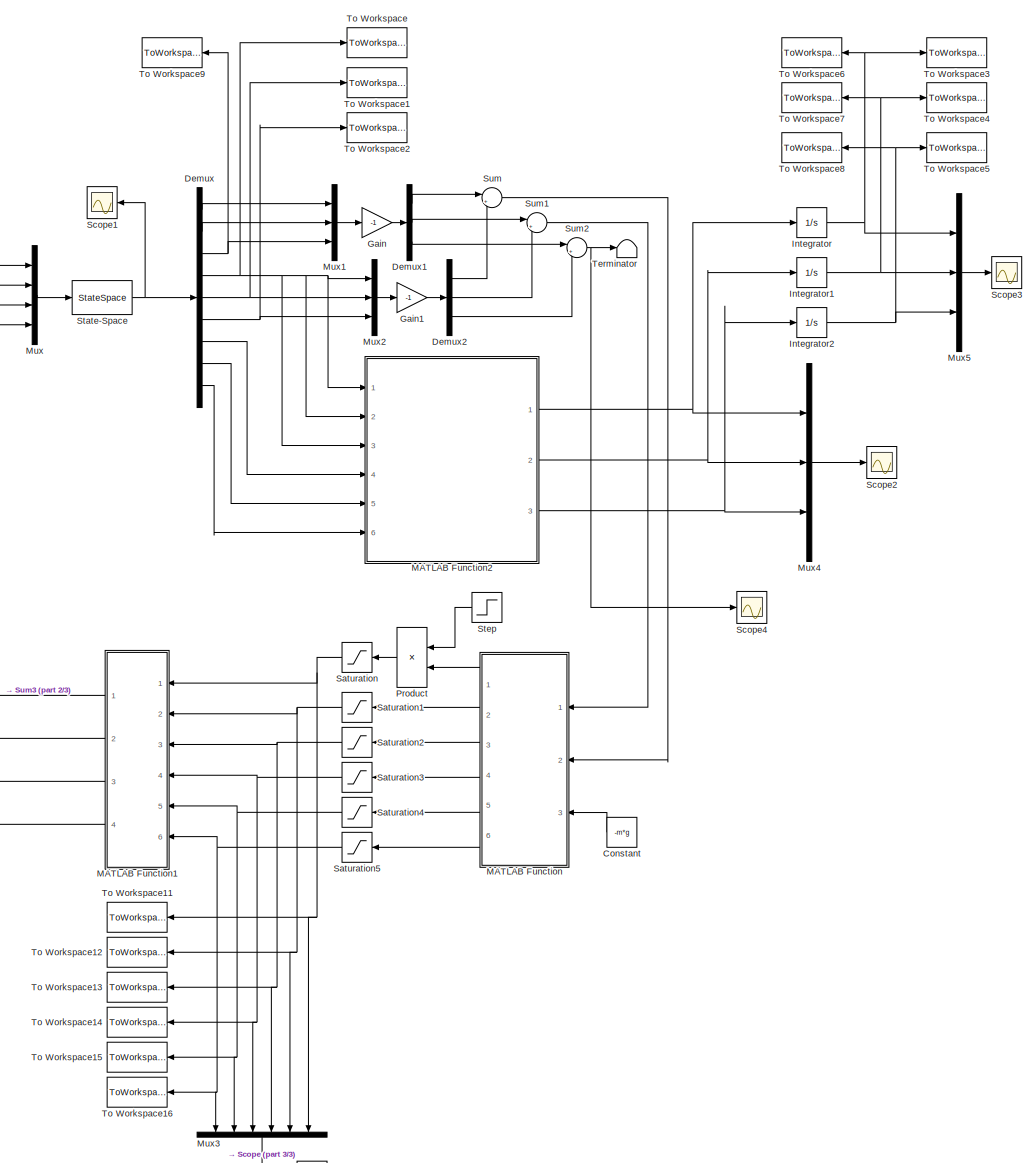
[diagram: root canvas - part 1/3, most of the canvas]
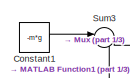
[diagram: root canvas - part 2/3, top left region]
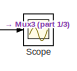
[diagram: root canvas - part 3/3, bottom center region]
MODEL slx_f54a9f37ff0a
KIND model
CONFIG AbsTol = auto
CONFIG EnableMultiTasking = off
CONFIG FixedStep = auto
CONFIG MaxStep = auto
CONFIG MinStep = auto
CONFIG RelTol = 1e-3
CONFIG SampleTimeConstraint = Unconstrained
CONFIG Solver = ode45
CONFIG SolverName = ode45
CONFIG StartTime = 0.0
CONFIG StopTime = 20
BLOCK [Constant] Constant
  Value = -m*g
BLOCK [Constant] Constant1
  Value = -m*g
BLOCK [Demux] Demux
  DisplayOption = bar
  Outputs = 9
  Ports = [1, 9]
BLOCK [Demux] Demux1
  DisplayOption = bar
  Outputs = 3
  Ports = [1, 3]
BLOCK [Demux] Demux2
  DisplayOption = bar
  Outputs = 3
  Ports = [1, 3]
BLOCK [Gain] Gain
  Gain = -1
  OutDataTypeStr = Inherit: Inherit via internal rule
  ParamDataTypeStr = Inherit: Inherit via internal rule
  SaturateOnIntegerOverflow = off
BLOCK [Gain] Gain1
  Gain = -1
  OutDataTypeStr = Inherit: Inherit via internal rule
  ParamDataTypeStr = Inherit: Inherit via internal rule
  SaturateOnIntegerOverflow = off
BLOCK [Integrator] Integrator
  Ports = [1, 1]
BLOCK [Integrator] Integrator1
  Ports = [1, 1]
BLOCK [Integrator] Integrator2
  Ports = [1, 1]
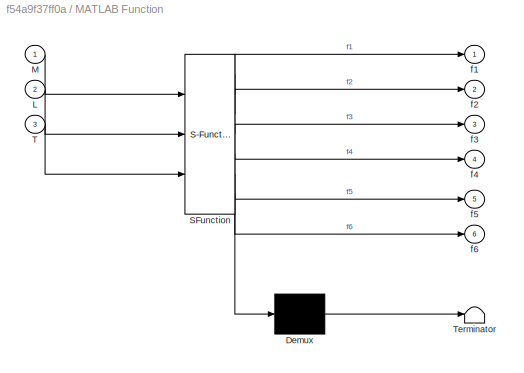
BLOCK [SubSystem] MATLAB Function
  ErrorFcn = Stateflow.Translate.translate
  PermitHierarchicalResolution = ExplicitOnly
  Ports = [3, 6]
  RequestExecContextInheritance = off
  SFBlockType = MATLAB Function
  TreatAsAtomicUnit = on
BLOCK [Demux] MATLAB Function/ Demux 
  Outputs = 1
  Ports = [1, 1]
BLOCK [S-Function] MATLAB Function/ SFunction 
  EnableBusSupport = on
  FunctionName = sf_sfun
  PortCounts = [3 7]
  Ports = [3, 7]
  SFcnIsStateOwnerBlock = off
  SFunctionDeploymentMode = off
  Tag = Stateflow S-Function Prototype_DCS_Simlulink 2
BLOCK [Terminator] MATLAB Function/ Terminator 
BLOCK [Inport] MATLAB Function/L
  IconDisplay = Port number
  Port = 2
BLOCK [Inport] MATLAB Function/M
  IconDisplay = Port number
BLOCK [Inport] MATLAB Function/T
  IconDisplay = Port number
  Port = 3
BLOCK [Outport] MATLAB Function/f1
  IconDisplay = Port number
BLOCK [Outport] MATLAB Function/f2
  IconDisplay = Port number
  Port = 2
BLOCK [Outport] MATLAB Function/f3
  IconDisplay = Port number
  Port = 3
BLOCK [Outport] MATLAB Function/f4
  IconDisplay = Port number
  Port = 4
BLOCK [Outport] MATLAB Function/f5
  IconDisplay = Port number
  Port = 5
BLOCK [Outport] MATLAB Function/f6
  IconDisplay = Port number
  Port = 6
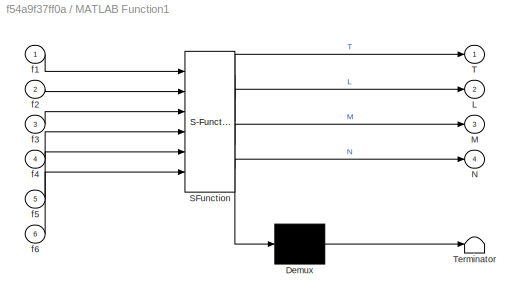
BLOCK [SubSystem] MATLAB Function1
  ErrorFcn = Stateflow.Translate.translate
  PermitHierarchicalResolution = ExplicitOnly
  Ports = [6, 4]
  RequestExecContextInheritance = off
  SFBlockType = MATLAB Function
  TreatAsAtomicUnit = on
BLOCK [Demux] MATLAB Function1/ Demux 
  Outputs = 1
  Ports = [1, 1]
BLOCK [S-Function] MATLAB Function1/ SFunction 
  EnableBusSupport = on
  FunctionName = sf_sfun
  PortCounts = [6 5]
  Ports = [6, 5]
  SFcnIsStateOwnerBlock = off
  SFunctionDeploymentMode = off
  Tag = Stateflow S-Function Prototype_DCS_Simlulink 1
BLOCK [Terminator] MATLAB Function1/ Terminator 
BLOCK [Outport] MATLAB Function1/L
  IconDisplay = Port number
  Port = 2
BLOCK [Outport] MATLAB Function1/M
  IconDisplay = Port number
  Port = 3
BLOCK [Outport] MATLAB Function1/N
  IconDisplay = Port number
  Port = 4
BLOCK [Outport] MATLAB Function1/T
  IconDisplay = Port number
BLOCK [Inport] MATLAB Function1/f1
  IconDisplay = Port number
BLOCK [Inport] MATLAB Function1/f2
  IconDisplay = Port number
  Port = 2
BLOCK [Inport] MATLAB Function1/f3
  IconDisplay = Port number
  Port = 3
BLOCK [Inport] MATLAB Function1/f4
  IconDisplay = Port number
  Port = 4
BLOCK [Inport] MATLAB Function1/f5
  IconDisplay = Port number
  Port = 5
BLOCK [Inport] MATLAB Function1/f6
  IconDisplay = Port number
  Port = 6
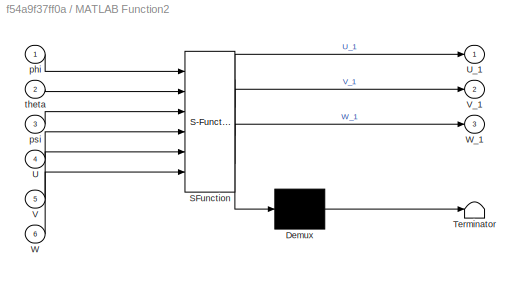
BLOCK [SubSystem] MATLAB Function2
  ErrorFcn = Stateflow.Translate.translate
  PermitHierarchicalResolution = ExplicitOnly
  Ports = [6, 3]
  RequestExecContextInheritance = off
  SFBlockType = MATLAB Function
  TreatAsAtomicUnit = on
BLOCK [Demux] MATLAB Function2/ Demux 
  Outputs = 1
  Ports = [1, 1]
BLOCK [S-Function] MATLAB Function2/ SFunction 
  EnableBusSupport = on
  FunctionName = sf_sfun
  PortCounts = [6 4]
  Ports = [6, 4]
  SFcnIsStateOwnerBlock = off
  SFunctionDeploymentMode = off
  Tag = Stateflow S-Function Prototype_DCS_Simlulink 3
BLOCK [Terminator] MATLAB Function2/ Terminator 
BLOCK [Inport] MATLAB Function2/U
  IconDisplay = Port number
  Port = 4
BLOCK [Outport] MATLAB Function2/U_1
  IconDisplay = Port number
BLOCK [Inport] MATLAB Function2/V
  IconDisplay = Port number
  Port = 5
BLOCK [Outport] MATLAB Function2/V_1
  IconDisplay = Port number
  Port = 2
BLOCK [Inport] MATLAB Function2/W
  IconDisplay = Port number
  Port = 6
BLOCK [Outport] MATLAB Function2/W_1
  IconDisplay = Port number
  Port = 3
BLOCK [Inport] MATLAB Function2/phi
  IconDisplay = Port number
BLOCK [Inport] MATLAB Function2/psi
  IconDisplay = Port number
  Port = 3
BLOCK [Inport] MATLAB Function2/theta
  IconDisplay = Port number
  Port = 2
BLOCK [Mux] Mux
  DisplayOption = bar
  Ports = [4, 1]
BLOCK [Mux] Mux1
  DisplayOption = bar
  Inputs = 3
  Ports = [3, 1]
BLOCK [Mux] Mux2
  DisplayOption = bar
  Inputs = 3
  Ports = [3, 1]
BLOCK [Mux] Mux3
  DisplayOption = bar
  Inputs = 6
  Ports = [6, 1]
BLOCK [Mux] Mux4
  DisplayOption = bar
  Inputs = 3
  Ports = [3, 1]
BLOCK [Mux] Mux5
  DisplayOption = bar
  Inputs = 3
  Ports = [3, 1]
BLOCK [Product] Product
  InputSameDT = off
  OutDataTypeStr = Inherit: Inherit via internal rule
  Ports = [2, 1]
  RndMeth = Floor
  SaturateOnIntegerOverflow = off
BLOCK [Saturate] Saturation
  InputPortMap = u0
  LowerLimit = 0
  Ports = [1, 1]
  UpperLimit = 6
BLOCK [Saturate] Saturation1
  InputPortMap = u0
  LowerLimit = 0
  Ports = [1, 1]
  UpperLimit = 6
BLOCK [Saturate] Saturation2
  InputPortMap = u0
  LowerLimit = 0
  Ports = [1, 1]
  UpperLimit = 6
BLOCK [Saturate] Saturation3
  InputPortMap = u0
  LowerLimit = 0
  Ports = [1, 1]
  UpperLimit = 6
BLOCK [Saturate] Saturation4
  InputPortMap = u0
  LowerLimit = 0
  Ports = [1, 1]
  UpperLimit = 6
BLOCK [Saturate] Saturation5
  InputPortMap = u0
  LowerLimit = 0
  Ports = [1, 1]
  UpperLimit = 6
BLOCK [Scope] Scope
  Floating = off
  NumInputPorts = 1
  Ports = [1]
  ScopeSpecificationString = Simulink.scopes.TimeScopeBlockCfg('CurrentConfiguration', extmgr.ConfigurationSet(extmgr.Configuration('Core','General UI',true),extmgr.Configuration('Core','Source UI',true),extmgr.Configuration('Sources','WiredSimulink',true),extmgr.Configuration('Visuals','Time Domain',true,'SerializedDisplays',{struct('MinYLimReal','-0.09268','MaxYLimReal','0.83415','YLabelReal','','MinYLimMag','0.00000','MaxY...<+1473ch>
BLOCK [Scope] Scope1
  Floating = off
  NumInputPorts = 1
  Ports = [1]
  ScopeSpecificationString = Simulink.scopes.TimeScopeBlockCfg('CurrentConfiguration', extmgr.ConfigurationSet(extmgr.Configuration('Core','General UI',true),extmgr.Configuration('Core','Source UI',true),extmgr.Configuration('Sources','WiredSimulink',true,'DataLoggingVariableName','ScopeData1'),extmgr.Configuration('Visuals','Time Domain',true,'SerializedDisplays',{struct('MinYLimReal','-0.09112','MaxYLimReal','0.12611','YLab...<+2463ch>
BLOCK [Scope] Scope2
  Floating = off
  NumInputPorts = 1
  Ports = [1]
  ScopeSpecificationString = Simulink.scopes.TimeScopeBlockCfg('CurrentConfiguration', extmgr.ConfigurationSet(extmgr.Configuration('Core','General UI',true),extmgr.Configuration('Core','Source UI',true),extmgr.Configuration('Sources','WiredSimulink',true,'DataLoggingVariableName','ScopeData2'),extmgr.Configuration('Visuals','Time Domain',true,'SerializedDisplays',{struct('MinYLimReal','-7.84082','MaxYLimReal','7.19117','YLab...<+2433ch>
BLOCK [Scope] Scope3
  Floating = off
  NumInputPorts = 1
  Ports = [1]
  ScopeSpecificationString = Simulink.scopes.TimeScopeBlockCfg('CurrentConfiguration', extmgr.ConfigurationSet(extmgr.Configuration('Core','General UI',true),extmgr.Configuration('Core','Source UI',true),extmgr.Configuration('Sources','WiredSimulink',true,'DataLoggingVariableName','ScopeData3'),extmgr.Configuration('Visuals','Time Domain',true,'SerializedDisplays',{struct('MinYLimReal','-0.46228','MaxYLimReal','0.51272','YLab...<+2405ch>
BLOCK [Scope] Scope4
  Floating = off
  NumInputPorts = 1
  Ports = [1]
  ScopeSpecificationString = Simulink.scopes.TimeScopeBlockCfg('CurrentConfiguration', extmgr.ConfigurationSet(extmgr.Configuration('Core','General UI',true),extmgr.Configuration('Core','Source UI',true),extmgr.Configuration('Sources','WiredSimulink',true,'DataLoggingVariableName','ScopeData1'),extmgr.Configuration('Visuals','Time Domain',true,'SerializedDisplays',{struct('MinYLimReal','-7.84082','MaxYLimReal','7.19117','YLab...<+2369ch>
BLOCK [StateSpace] State-Space
  A = A
  B = B
  C = C
  D = D
  InitialCondition = Condition
  Ports = [1, 1]
BLOCK [Step] Step
  After = 0
  Before = 1
  SampleTime = 0
BLOCK [Sum] Sum
  IconShape = round
  InputSameDT = off
  Inputs = |++
  OutDataTypeStr = Inherit: Inherit via internal rule
  Ports = [2, 1]
  SaturateOnIntegerOverflow = off
BLOCK [Sum] Sum1
  IconShape = round
  InputSameDT = off
  Inputs = |++
  OutDataTypeStr = Inherit: Inherit via internal rule
  Ports = [2, 1]
  SaturateOnIntegerOverflow = off
BLOCK [Sum] Sum2
  IconShape = round
  InputSameDT = off
  Inputs = |++
  OutDataTypeStr = Inherit: Inherit via internal rule
  Ports = [2, 1]
  SaturateOnIntegerOverflow = off
BLOCK [Sum] Sum3
  IconShape = round
  InputSameDT = off
  Inputs = |-+
  OutDataTypeStr = Inherit: Inherit via internal rule
  Ports = [2, 1]
  SaturateOnIntegerOverflow = off
BLOCK [Terminator] Terminator
BLOCK [ToWorkspace] To Workspace
  FixptAsFi = on
  MaxDataPoints = inf
  Ports = [1]
  SampleTime = -1
  Save2DSignal = 3-D array (concatenate along third dimension)
  SaveFormat = Timeseries
  VariableName = Roll_DCS
BLOCK [ToWorkspace] To Workspace1
  FixptAsFi = on
  MaxDataPoints = inf
  Ports = [1]
  SampleTime = -1
  Save2DSignal = 3-D array (concatenate along third dimension)
  SaveFormat = Timeseries
  VariableName = Pitch_DCS
BLOCK [ToWorkspace] To Workspace11
  FixptAsFi = on
  MaxDataPoints = inf
  Ports = [1]
  SampleTime = -1
  Save2DSignal = 3-D array (concatenate along third dimension)
  SaveFormat = Timeseries
  VariableName = t_motor1_DCS
BLOCK [ToWorkspace] To Workspace12
  FixptAsFi = on
  MaxDataPoints = inf
  Ports = [1]
  SampleTime = -1
  Save2DSignal = 3-D array (concatenate along third dimension)
  SaveFormat = Timeseries
  VariableName = t_motor2_DCS
BLOCK [ToWorkspace] To Workspace13
  FixptAsFi = on
  MaxDataPoints = inf
  Ports = [1]
  SampleTime = -1
  Save2DSignal = 3-D array (concatenate along third dimension)
  SaveFormat = Timeseries
  VariableName = t_motor3_DCS
BLOCK [ToWorkspace] To Workspace14
  FixptAsFi = on
  MaxDataPoints = inf
  Ports = [1]
  SampleTime = -1
  Save2DSignal = 3-D array (concatenate along third dimension)
  SaveFormat = Timeseries
  VariableName = t_motor4_DCS
BLOCK [ToWorkspace] To Workspace15
  FixptAsFi = on
  MaxDataPoints = inf
  Ports = [1]
  SampleTime = -1
  Save2DSignal = 3-D array (concatenate along third dimension)
  SaveFormat = Timeseries
  VariableName = t_motor5_DCS
BLOCK [ToWorkspace] To Workspace16
  FixptAsFi = on
  MaxDataPoints = inf
  Ports = [1]
  SampleTime = -1
  Save2DSignal = 3-D array (concatenate along third dimension)
  SaveFormat = Timeseries
  VariableName = t_motor6_DCS
BLOCK [ToWorkspace] To Workspace2
  FixptAsFi = on
  MaxDataPoints = inf
  Ports = [1]
  SampleTime = -1
  Save2DSignal = 3-D array (concatenate along third dimension)
  SaveFormat = Timeseries
  VariableName = Yaw_DCS
BLOCK [ToWorkspace] To Workspace3
  FixptAsFi = on
  MaxDataPoints = inf
  Ports = [1]
  SampleTime = -1
  Save2DSignal = 3-D array (concatenate along third dimension)
  SaveFormat = Timeseries
  VariableName = x_earth_DCS
BLOCK [ToWorkspace] To Workspace4
  FixptAsFi = on
  MaxDataPoints = inf
  Ports = [1]
  SampleTime = -1
  Save2DSignal = 3-D array (concatenate along third dimension)
  SaveFormat = Timeseries
  VariableName = y_earth_DCS
BLOCK [ToWorkspace] To Workspace5
  FixptAsFi = on
  MaxDataPoints = inf
  Ports = [1]
  SampleTime = -1
  Save2DSignal = 3-D array (concatenate along third dimension)
  SaveFormat = Timeseries
  VariableName = z_earth_DCS
BLOCK [ToWorkspace] To Workspace6
  FixptAsFi = on
  MaxDataPoints = inf
  Ports = [1]
  SampleTime = -1
  Save2DSignal = 3-D array (concatenate along third dimension)
  VariableName = x_e_DCS
BLOCK [ToWorkspace] To Workspace7
  FixptAsFi = on
  MaxDataPoints = inf
  Ports = [1]
  SampleTime = -1
  Save2DSignal = 3-D array (concatenate along third dimension)
  VariableName = y_e_DCS
BLOCK [ToWorkspace] To Workspace8
  FixptAsFi = on
  MaxDataPoints = inf
  Ports = [1]
  SampleTime = -1
  Save2DSignal = 3-D array (concatenate along third dimension)
  VariableName = z_e_DCS
BLOCK [ToWorkspace] To Workspace9
  FixptAsFi = on
  MaxDataPoints = inf
  Ports = [1]
  SampleTime = -1
  Save2DSignal = 3-D array (concatenate along third dimension)
  SaveFormat = Timeseries
  VariableName = Yaw_rate_DCS
LINE Constant1:1 -> Sum3:1
LINE Constant:1 -> MATLAB Function:3
LINE Demux1:1 -> Sum:1
LINE Demux1:2 -> Sum1:1
LINE Demux1:3 -> Sum2:1
LINE Demux2:1 -> Sum:2
LINE Demux2:2 -> Sum1:2
LINE Demux2:3 -> Sum2:2
LINE Demux:1 -> Mux1:1
LINE Demux:2 -> Mux1:2
NET Demux:3 -> Mux1:3, To Workspace9:1
NET Demux:4 -> MATLAB Function2:1, MATLAB Function2:2, MATLAB Function2:3, Mux2:1, To Workspace:1
NET Demux:5 -> Mux2:2, To Workspace1:1
NET Demux:6 -> Mux2:3, To Workspace2:1
LINE Demux:7 -> MATLAB Function2:4
LINE Demux:8 -> MATLAB Function2:5
LINE Demux:9 -> MATLAB Function2:6
LINE Gain1:1 -> Demux2:1
LINE Gain:1 -> Demux1:1
NET Integrator1:1 -> Mux5:2, To Workspace4:1, To Workspace7:1
NET Integrator2:1 -> Mux5:3, To Workspace5:1, To Workspace8:1
NET Integrator:1 -> Mux5:1, To Workspace3:1, To Workspace6:1
LINE MATLAB Function1:1 -> Sum3:2
LINE MATLAB Function1:2 -> Mux:2
LINE MATLAB Function1:3 -> Mux:3
LINE MATLAB Function1:4 -> Mux:4
NET MATLAB Function2:1 -> Integrator:1, Mux4:1
NET MATLAB Function2:2 -> Integrator1:1, Mux4:2
NET MATLAB Function2:3 -> Integrator2:1, Mux4:3
LINE MATLAB Function:1 -> Product:2
LINE MATLAB Function:2 -> Saturation1:1
LINE MATLAB Function:3 -> Saturation2:1
LINE MATLAB Function:4 -> Saturation3:1
LINE MATLAB Function:5 -> Saturation4:1
LINE MATLAB Function:6 -> Saturation5:1
LINE Mux1:1 -> Gain:1
LINE Mux2:1 -> Gain1:1
LINE Mux3:1 -> Scope:1
LINE Mux4:1 -> Scope2:1
LINE Mux5:1 -> Scope3:1
LINE Mux:1 -> State-Space:1
LINE Product:1 -> Saturation:1
NET Saturation1:1 -> MATLAB Function1:2, Mux3:5, To Workspace12:1
NET Saturation2:1 -> MATLAB Function1:3, Mux3:4, To Workspace13:1
NET Saturation3:1 -> MATLAB Function1:4, Mux3:3, To Workspace14:1
NET Saturation4:1 -> MATLAB Function1:5, Mux3:2, To Workspace15:1
NET Saturation5:1 -> MATLAB Function1:6, Mux3:1, To Workspace16:1
NET Saturation:1 -> MATLAB Function1:1, Mux3:6, To Workspace11:1
NET State-Space:1 -> Demux:1, Scope1:1
LINE Step:1 -> Product:1
LINE Sum1:1 -> MATLAB Function:1
NET Sum2:1 -> Scope4:1, Terminator:1
LINE Sum3:1 -> Mux:1
LINE Sum:1 -> MATLAB Function:2
note: NET lines group one-source signal fan-out (src -> all destinations, sorted); 1:1 wires keep LINE
CHART MATLAB Function1 states=1 transitions=1
  STATE_LABEL 'eML_blk_kernel()'
  STATE_LABEL 'SCRIPT:\nfunction [T,L,M,N] = fcn(f1,f2,f3,f4,f5,f6)\nd = 0.1;\nk = 0.1;\nH = [ -1 -1 -1 -1 -1 -1 ;...\n      0 -d*sqrt(3)/2 -d*sqrt(3)/2 0 d*sqrt(3)/2 d*sqrt(3)/2;...\n      d d/2 -d/2 -d -d/2 d/2;...\n      -k k -k k -k k];\n\nF = H*[f1;f2;f3;f4;f5;f6];\n\nT = F(1);\nL = F(2);\nM = F(3);\nN = F(4);\n'
CHART MATLAB Function states=1 transitions=1
  STATE_LABEL 'eML_blk_kernel()'
  STATE_LABEL "SCRIPT:\nfunction [f1,f2,f3,f4,f5,f6] = fcn(M, L, T)\nm = 0.175;\ng = 9.81;\nd = 0.1;\nn1 = 0;\nn2 = 1;\nn3 = 1;\nn4 = 1;\nn5 = 1;\nn6 = 1;\nH_DCS = [ -n1 -n2 -n3 -n4 -n5 -n6 ;...\n      0 -n2*d*sqrt(3)/2 -n3*d*sqrt(3)/2 0 n5*d*sqrt(3)/2 n6*d*sqrt(3)/2;...\n      n1*d n2*d/2 -n3*d/2 -n4*d -n5*d/2 n6*d/2];\n\nA = (H_DCS.')/(H_DCS*(H_DCS.'));\n  \nB = [T;L;M];\n\nX = A*B;\n\nf1 = X(1);\nf2 = X(2);\nf3 = X(3);\nf4 = X(4);\nf...<+20ch>"
CHART MATLAB Function2 states=1 transitions=1
  STATE_LABEL 'eML_blk_kernel()'
  STATE_LABEL 'SCRIPT:\nfunction [U_1, V_1, W_1] = fcn(phi, theta, psi, U, V, W)\n\nU_1 = U*cos(psi)*cos(theta) +...\n      V*( -sin(psi)*cos(phi) + cos(psi)*sin(theta)*sin(phi)) +...\n      W*( sin(psi)*sin(phi) + cos(psi)*sin(theta)*cos(phi));\n\nV_1 = U*sin(psi)*cos(theta) +...\n      V*( cos(psi)*cos(phi) + sin(psi)*sin(theta)*sin(phi)) +...\n      W*( -sin(phi)*cos(psi) + sin(psi)*sin(theta)*cos(phi));\n\nW_1 = U*(-si...<+79ch>'
